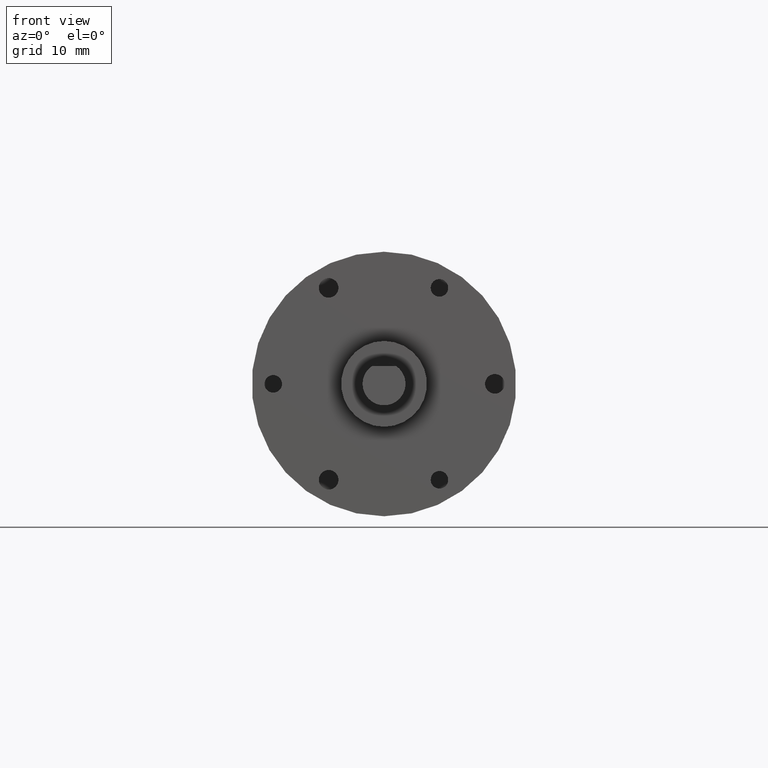
[diagram: clean part render]
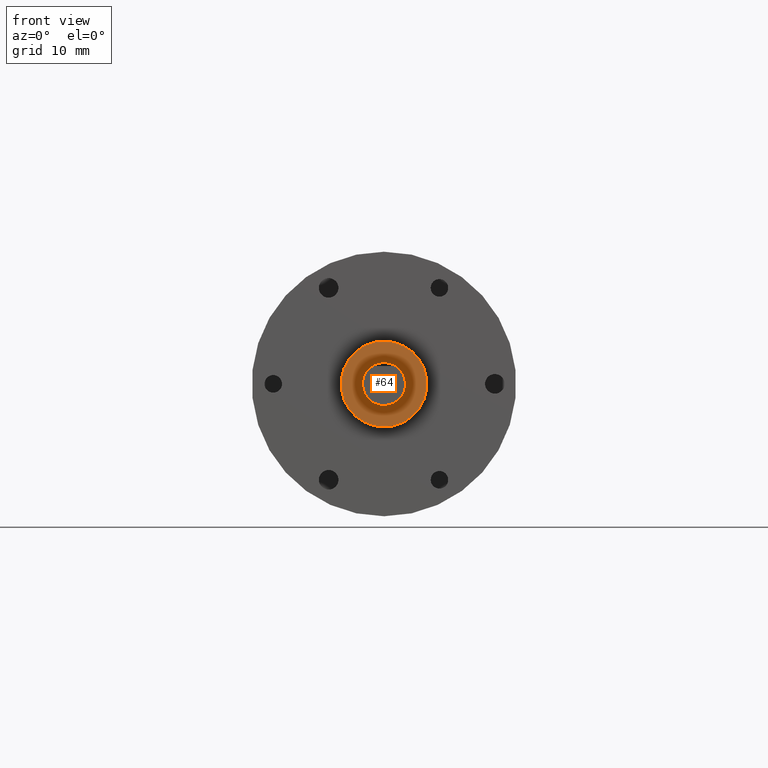
[diagram: same view with one face highlighted and labeled with its STEP entity id]
A machine part, front view. The second image highlights one B-rep face of the part: STEP entity #64.
In plain terms, the highlighted planar face has unit normal (0, 1, -0).
Its self-contained STEP definition (entity closure, byte-faithful):
#64 = ADVANCED_FACE( '', ( #158, #159 ), #160, .F. );
#158 = FACE_OUTER_BOUND( '', #305, .T. );
#159 = FACE_BOUND( '', #306, .T. );
#160 = PLANE( '', #307 );
#305 = EDGE_LOOP( '', ( #451 ) );
#306 = EDGE_LOOP( '', ( #452 ) );
#307 = AXIS2_PLACEMENT_3D( '', #453, #454, #455 );
#451 = ORIENTED_EDGE( '', *, *, #708, .F. );
#452 = ORIENTED_EDGE( '', *, *, #709, .T. );
#453 = CARTESIAN_POINT( '', ( 0.000000000000000, -6.00000000000000, -6.00000000000000 ) );
#454 = DIRECTION( '', ( 0.000000000000000, 1.00000000000000, -1.16882304974597E-018 ) );
#455 = DIRECTION( '', ( 0.000000000000000, 1.16882304974597E-018, 1.00000000000000 ) );
#708 = EDGE_CURVE( '', #804, #804, #805, .T. );
#709 = EDGE_CURVE( '', #806, #806, #807, .T. );
#804 = VERTEX_POINT( '', #944 );
#805 = CIRCLE( '', #945, 6.00000000000000 );
#806 = VERTEX_POINT( '', #946 );
#807 = CIRCLE( '', #947, 3.00000000000000 );
#944 = CARTESIAN_POINT( '', ( 0.000000000000000, -6.00000000000000, 6.00000000000000 ) );
#945 = AXIS2_PLACEMENT_3D( '', #1098, #1099, #1100 );
#946 = CARTESIAN_POINT( '', ( 0.000000000000000, -6.00000000000000, 3.00000000000000 ) );
#947 = AXIS2_PLACEMENT_3D( '', #1101, #1102, #1103 );
#1098 = CARTESIAN_POINT( '', ( 0.000000000000000, -6.00000000000000, 7.01293829847603E-018 ) );
#1099 = DIRECTION( '', ( 0.000000000000000, 1.00000000000000, -1.16882304974597E-018 ) );
#1100 = DIRECTION( '', ( 0.000000000000000, 1.16882304974597E-018, 1.00000000000000 ) );
#1101 = CARTESIAN_POINT( '', ( 0.000000000000000, -6.00000000000000, 7.01293829847603E-018 ) );
#1102 = DIRECTION( '', ( 0.000000000000000, 1.00000000000000, -1.16882304974597E-018 ) );
#1103 = DIRECTION( '', ( 0.000000000000000, 1.16882304974597E-018, 1.00000000000000 ) );